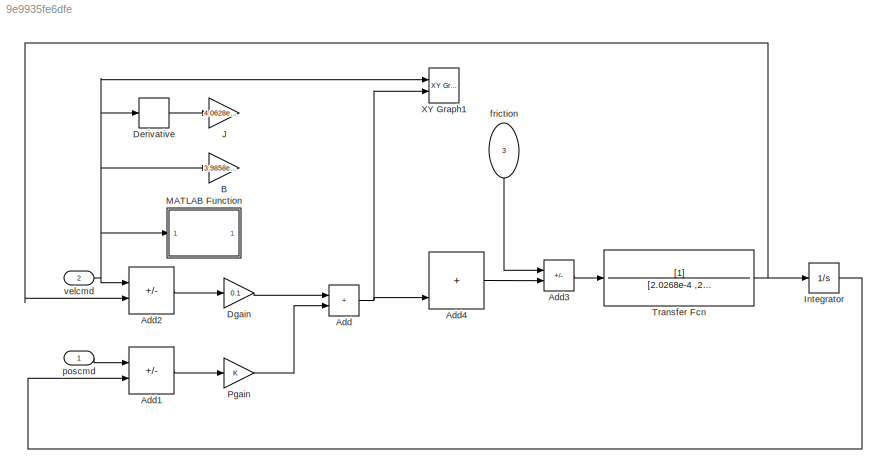
MODEL slx_9e9935fe6dfe
KIND model
CONFIG AbsTol = auto
CONFIG EnableMultiTasking = off
CONFIG FixedStep = 0.001
CONFIG MaxStep = auto
CONFIG MinStep = auto
CONFIG RelTol = 1e-3
CONFIG SampleTimeConstraint = Unconstrained
CONFIG SolverName = FixedStepAuto
CONFIG StartTime = 0.0
CONFIG StopTime = 7.9
BLOCK [Sum] Add
  IconShape = rectangular
  Ports = [2, 1]
BLOCK [Sum] Add1
  IconShape = rectangular
  Inputs = +-
  Ports = [2, 1]
BLOCK [Sum] Add2
  IconShape = rectangular
  Inputs = +-
  Ports = [2, 1]
BLOCK [Sum] Add3
  IconShape = rectangular
  Inputs = -+
  Ports = [2, 1]
BLOCK [Sum] Add4
  IconShape = rectangular
  Inputs = ++++
  Ports = [4, 1]
BLOCK [Gain] B
  Gain = 3.9858e-4
BLOCK [Derivative] Derivative
BLOCK [Gain] Dgain
  Gain = 0.1
BLOCK [Integrator] Integrator
  Ports = [1, 1]
BLOCK [Gain] J
  Gain = 4.0628e-4
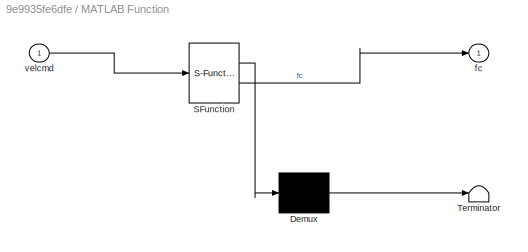
BLOCK [SubSystem] MATLAB Function
  ErrorFcn = Stateflow.Translate.translate
  PermitHierarchicalResolution = ExplicitOnly
  Ports = [1, 1]
  RequestExecContextInheritance = off
  SFBlockType = MATLAB Function
  TreatAsAtomicUnit = on
BLOCK [Demux] MATLAB Function/ Demux 
  Outputs = 1
  Ports = [1, 1]
BLOCK [S-Function] MATLAB Function/ SFunction 
  EnableBusSupport = on
  FunctionName = sf_sfun
  PortCounts = [1 2]
  Ports = [1, 2]
  SFcnIsStateOwnerBlock = off
  SFunctionDeploymentMode = off
  Tag = Stateflow S-Function 2
BLOCK [Terminator] MATLAB Function/ Terminator 
BLOCK [Outport] MATLAB Function/fc
BLOCK [Inport] MATLAB Function/velcmd
BLOCK [Gain] Pgain
BLOCK [TransferFcn] Transfer Fcn
  Denominator = [2.0268e-4 ,2.1211e-4]
BLOCK [Reference] XY Graph1  REF=simulink/Sinks/XY Graph
  Ports = [2]
  SourceBlock = simulink/Sinks/XY Graph
  SourceProductBaseCode = SL
  SourceType = XY scope.
BLOCK [Inport] friction
  NameLocation = left
  Port = 3
  PortDimensions = [1]
  SampleTime = 0.001
BLOCK [Inport] poscmd
BLOCK [Inport] velcmd
  Port = 2
LINE Add1:1 -> Pgain:1
LINE Add2:1 -> Dgain:1
LINE Add3:1 -> Transfer Fcn:1
LINE Add4:1 -> Add3:2
NET Add:1 -> Add4:4, XY Graph1:2
LINE Derivative:1 -> J:1
LINE Dgain:1 -> Add:1
LINE Integrator:1 -> Add1:2
LINE Pgain:1 -> Add:2
NET Transfer Fcn:1 -> Add2:2, Integrator:1
LINE friction:1 -> Add3:1
LINE poscmd:1 -> Add1:1
NET velcmd:1 -> Add2:1, B:1, Derivative:1, MATLAB Function:1, XY Graph1:1
note: NET lines group one-source signal fan-out (src -> all destinations, sorted); 1:1 wires keep LINE
CHART MATLAB Function states=1 transitions=1
  STATE_LABEL 'eML_blk_kernel()'
  STATE_LABEL 'SCRIPT:\nfunction fc = fcn(velcmd)\n    if velcmd >= 1.0\n        fc = 0.0237;\n    elseif velcmd < -1.38\n        fc = -0.0307;\n    else\n        fc = 0;\n    end\nend\n'
CHART  states=0 transitions=0
